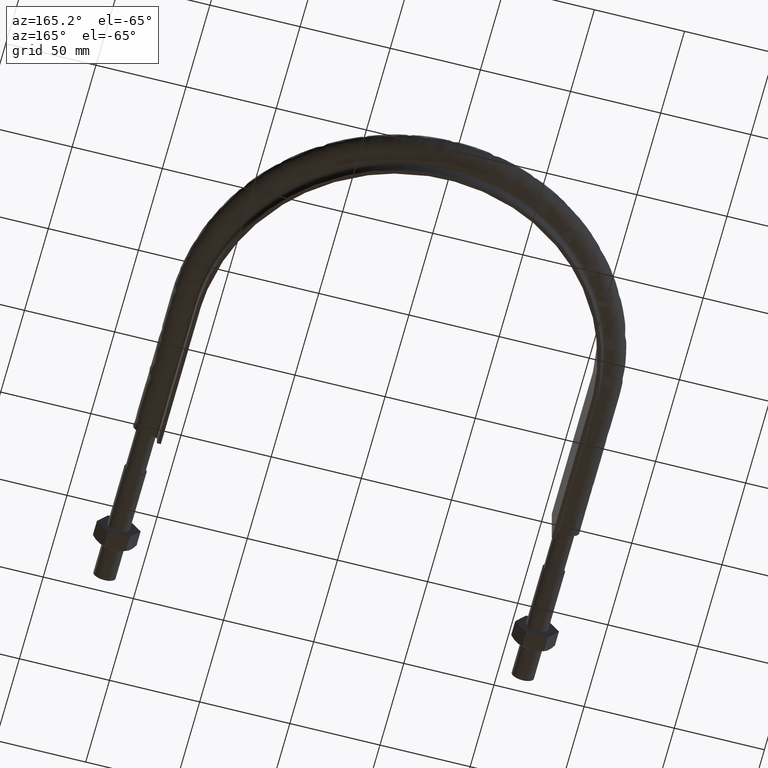
[diagram: clean part render]
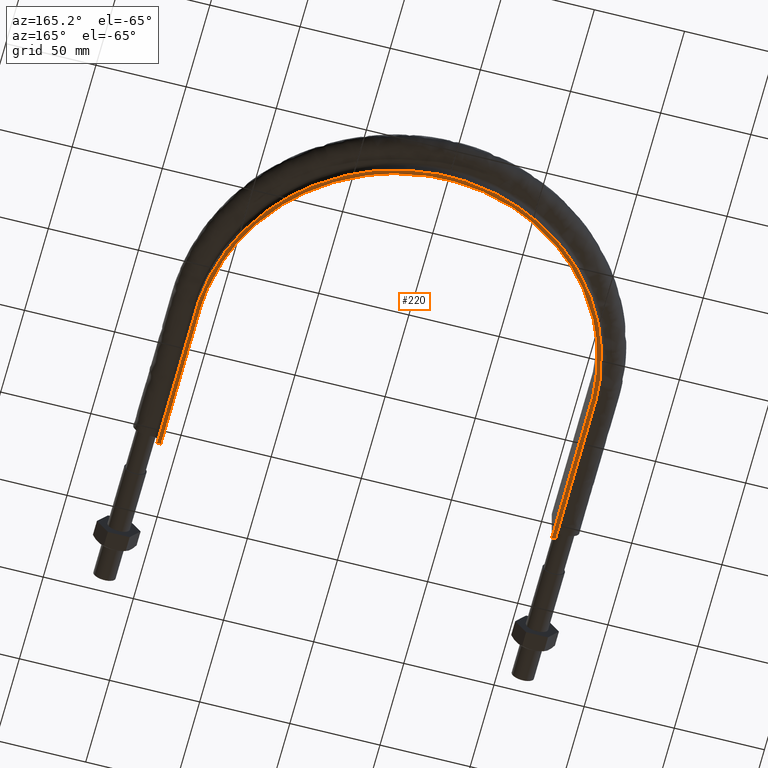
[diagram: same view with one face highlighted and labeled with its STEP entity id]
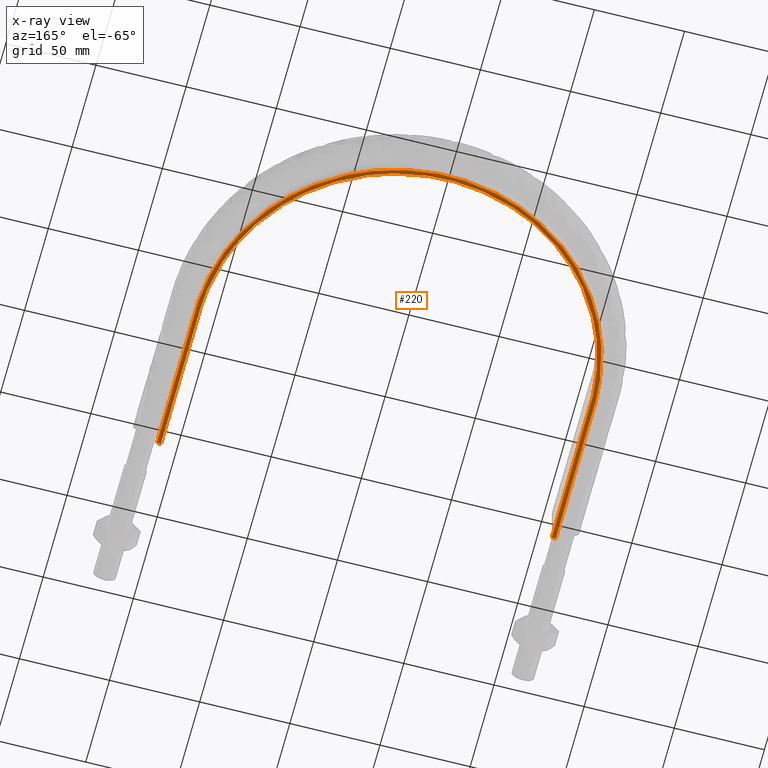
[diagram: x-ray of the same camera — body ghosted, the highlighted face saturated]
A machine part, auxiliary view. The second image highlights one B-rep face of the part: STEP entity #220.
The next image is the same camera in x-ray: the body ghosted, the highlighted face saturated — about 0% of this face is hidden behind the body in this view.
In plain terms, the highlighted planar face has unit normal (0, 0, 1).
Its self-contained STEP definition (entity closure, byte-faithful):
#220 = ADVANCED_FACE( '', ( #263 ), #264, .F. );
#263 = FACE_OUTER_BOUND( '', #365, .T. );
#264 = PLANE( '', #366 );
#365 = EDGE_LOOP( '', ( #1371, #1372, #1373, #1374 ) );
#366 = AXIS2_PLACEMENT_3D( '', #1375, #1376, #1377 );
#1371 = ORIENTED_EDGE( '', *, *, #1658, .F. );
#1372 = ORIENTED_EDGE( '', *, *, #1657, .F. );
#1373 = ORIENTED_EDGE( '', *, *, #1659, .F. );
#1374 = ORIENTED_EDGE( '', *, *, #1660, .F. );
#1375 = CARTESIAN_POINT( '', ( 150.000000000000, 389.500000000000, -15.0000000000000 ) );
#1376 = DIRECTION( '', ( 0.000000000000000, 0.000000000000000, 1.00000000000000 ) );
#1377 = DIRECTION( '', ( 1.22460635382238E-016, 1.00000000000000, 0.000000000000000 ) );
#1657 = EDGE_CURVE( '', #1742, #1737, #1744, .T. );
#1658 = EDGE_CURVE( '', #1737, #1745, #1746, .T. );
#1659 = EDGE_CURVE( '', #1747, #1742, #1748, .T. );
#1660 = EDGE_CURVE( '', #1745, #1747, #1749, .T. );
#1737 = VERTEX_POINT( '', #1895 );
#1742 = VERTEX_POINT( '', #1902 );
#1744 = LINE( '', #1934, #1935 );
#1745 = VERTEX_POINT( '', #1936 );
#1746 = B_SPLINE_CURVE_WITH_KNOTS( '', 3, ( #1937, #1938, #1939, #1940, #1941, #1942, #1943, #1944, #1945, #1946, #1947, #1948, #1949, #1950, #1951, #1952, #1953 ), .UNSPECIFIED., .F., .F., ( 4, 3, 1, 1, 1, 1, 1, 1, 1, 3, 4 ), ( -10.0000000000000, -9.00000000000000, -8.00000000000000, -7.00000000000000, -6.00000000000000, -5.00000000000000, -4.00000000000000, -3.00000000000000, -2.00000000000000, -1.00000000000000, 0.000000000000000 ), .UNSPECIFIED. );
#1747 = VERTEX_POINT( '', #1954 );
#1748 = B_SPLINE_CURVE_WITH_KNOTS( '', 3, ( #1955, #1956, #1957, #1958, #1959, #1960, #1961, #1962, #1963, #1964, #1965, #1966, #1967, #1968, #1969, #1970, #1971 ), .UNSPECIFIED., .F., .F., ( 4, 3, 1, 1, 1, 1, 1, 1, 1, 3, 4 ), ( 0.000000000000000, 1.00000000000000, 2.00000000000000, 3.00000000000000, 4.00000000000000, 5.00000000000000, 6.00000000000000, 7.00000000000000, 8.00000000000000, 9.00000000000000, 10.0000000000000 ), .UNSPECIFIED. );
#1749 = LINE( '', #1972, #1973 );
#1895 = CARTESIAN_POINT( '', ( -108.400000000000, 89.5000000000003, -15.0000000000000 ) );
#1902 = CARTESIAN_POINT( '', ( -110.600000000000, 89.5000000000003, -15.0000000000000 ) );
#1934 = CARTESIAN_POINT( '', ( -150.000000000000, 89.5000000000003, -15.0000000000000 ) );
#1935 = VECTOR( '', #2387, 1000.00000000000 );
#1936 = CARTESIAN_POINT( '', ( 108.400000000000, 89.5000000000000, -15.0000000000000 ) );
#1937 = CARTESIAN_POINT( '', ( -108.400000000000, 89.5000000000001, -15.0000000000000 ) );
#1938 = CARTESIAN_POINT( '', ( -108.400000000000, 116.866666666667, -15.0000000000000 ) );
#1939 = CARTESIAN_POINT( '', ( -108.400000000000, 144.233333333333, -15.0000000000000 ) );
#1940 = CARTESIAN_POINT( '', ( -108.400000000000, 171.600000000000, -15.0000000000000 ) );
#1941 = CARTESIAN_POINT( '', ( -108.400000000000, 185.774498518656, -15.0000000000000 ) );
#1942 = CARTESIAN_POINT( '', ( -102.755814879494, 214.168943035043, -15.0000000000000 ) );
#1943 = CARTESIAN_POINT( '', ( -78.6458958671129, 250.244256009620, -15.0000000000000 ) );
#1944 = CARTESIAN_POINT( '', ( -42.5628521357854, 274.356283410206, -15.0000000000000 ) );
#1945 = CARTESIAN_POINT( '', ( 7.62679078902217E-014, 282.821858294897, -15.0000000000000 ) );
#1946 = CARTESIAN_POINT( '', ( 42.5628521357854, 274.356283410206, -15.0000000000000 ) );
#1947 = CARTESIAN_POINT( '', ( 78.6458958671129, 250.244256009621, -15.0000000000000 ) );
#1948 = CARTESIAN_POINT( '', ( 102.755814879494, 214.168943035043, -15.0000000000000 ) );
#1949 = CARTESIAN_POINT( '', ( 108.400000000000, 185.774498518656, -15.0000000000000 ) );
#1950 = CARTESIAN_POINT( '', ( 108.400000000000, 171.600000000000, -15.0000000000000 ) );
#1951 = CARTESIAN_POINT( '', ( 108.400000000000, 144.233333333333, -15.0000000000000 ) );
#1952 = CARTESIAN_POINT( '', ( 108.400000000000, 116.866666666667, -15.0000000000000 ) );
#1953 = CARTESIAN_POINT( '', ( 108.400000000000, 89.5000000000000, -15.0000000000000 ) );
#1954 = CARTESIAN_POINT( '', ( 110.600000000000, 89.5000000000003, -15.0000000000000 ) );
#1955 = CARTESIAN_POINT( '', ( 110.600000000000, 89.5000000000000, -15.0000000000000 ) );
#1956 = CARTESIAN_POINT( '', ( 110.600000000000, 116.866666666667, -15.0000000000000 ) );
#1957 = CARTESIAN_POINT( '', ( 110.600000000000, 144.233333333333, -15.0000000000000 ) );
#1958 = CARTESIAN_POINT( '', ( 110.600000000000, 171.600000000000, -15.0000000000000 ) );
#1959 = CARTESIAN_POINT( '', ( 110.600000000000, 186.066236657480, -15.0000000000000 ) );
#1960 = CARTESIAN_POINT( '', ( 104.841264996974, 215.031001602308, -15.0000000000000 ) );
#1961 = CARTESIAN_POINT( '', ( 80.2420302850801, 251.840865123178, -15.0000000000000 ) );
#1962 = CARTESIAN_POINT( '', ( 43.4266738580984, 276.441597900375, -15.0000000000000 ) );
#1963 = CARTESIAN_POINT( '', ( 8.69526843741250E-014, 285.079201049813, -15.0000000000000 ) );
#1964 = CARTESIAN_POINT( '', ( -43.4266738580983, 276.441597900375, -15.0000000000000 ) );
#1965 = CARTESIAN_POINT( '', ( -80.2420302850801, 251.840865123178, -15.0000000000000 ) );
#1966 = CARTESIAN_POINT( '', ( -104.841264996974, 215.031001602308, -15.0000000000000 ) );
#1967 = CARTESIAN_POINT( '', ( -110.600000000000, 186.066236657480, -15.0000000000000 ) );
#1968 = CARTESIAN_POINT( '', ( -110.600000000000, 171.600000000000, -15.0000000000000 ) );
#1969 = CARTESIAN_POINT( '', ( -110.600000000000, 144.233333333333, -15.0000000000000 ) );
#1970 = CARTESIAN_POINT( '', ( -110.600000000000, 116.866666666667, -15.0000000000000 ) );
#1971 = CARTESIAN_POINT( '', ( -110.600000000000, 89.5000000000001, -15.0000000000000 ) );
#1972 = CARTESIAN_POINT( '', ( -150.000000000000, 89.5000000000003, -15.0000000000000 ) );
#1973 = VECTOR( '', #2388, 1000.00000000000 );
#2387 = DIRECTION( '', ( 1.00000000000000, -1.22460635382238E-016, 0.000000000000000 ) );
#2388 = DIRECTION( '', ( 1.00000000000000, -1.22460635382238E-016, 0.000000000000000 ) );